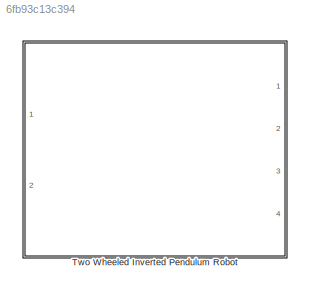
MODEL slx_6fb93c13c394
KIND model
CONFIG AbsTol = auto
CONFIG EnableMultiTasking = off
CONFIG FixedStep = auto
CONFIG MaxStep = auto
CONFIG MinStep = auto
CONFIG RelTol = 1e-3
CONFIG SampleTimeConstraint = Unconstrained
CONFIG Solver = VariableStepAuto
CONFIG SolverName = VariableStepAuto
CONFIG StartTime = 0.0
CONFIG StopTime = 10.0
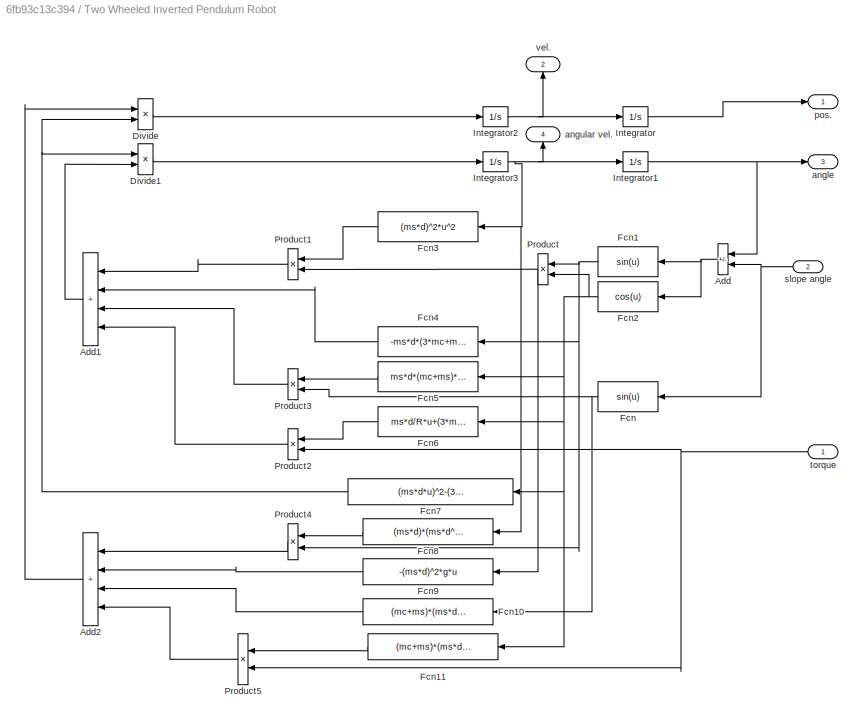
BLOCK [SubSystem] Two Wheeled Inverted Pendulum Robot
  Ports = [2, 4]
  RequestExecContextInheritance = off
BLOCK [Sum] Two Wheeled Inverted Pendulum Robot/Add
  IconShape = rectangular
  Inputs = +-
  Ports = [2, 1]
BLOCK [Sum] Two Wheeled Inverted Pendulum Robot/Add1
  IconShape = rectangular
  Inputs = ++++
  NameLocation = top
  Ports = [4, 1]
BLOCK [Sum] Two Wheeled Inverted Pendulum Robot/Add2
  IconShape = rectangular
  Inputs = ++++
  NameLocation = top
  Ports = [4, 1]
BLOCK [Product] Two Wheeled Inverted Pendulum Robot/Divide
  Inputs = */
  Ports = [2, 1]
BLOCK [Product] Two Wheeled Inverted Pendulum Robot/Divide1
  Inputs = /*
  Ports = [2, 1]
BLOCK [Fcn] Two Wheeled Inverted Pendulum Robot/Fcn
  Expr = sin(u)
  NameLocation = top
BLOCK [Fcn] Two Wheeled Inverted Pendulum Robot/Fcn1
  Expr = sin(u)
  NameLocation = top
BLOCK [Fcn] Two Wheeled Inverted Pendulum Robot/Fcn10
  Expr = (mc+ms)*(ms*d^2+I3)*g*u
  NameLocation = top
BLOCK [Fcn] Two Wheeled Inverted Pendulum Robot/Fcn11
  Expr = (mc+ms)*(ms*d^2+I3)*g*u
  NameLocation = top
BLOCK [Fcn] Two Wheeled Inverted Pendulum Robot/Fcn2
  Expr = cos(u)
  NameLocation = top
BLOCK [Fcn] Two Wheeled Inverted Pendulum Robot/Fcn3
  Expr = (ms*d)^2*u^2
  NameLocation = top
BLOCK [Fcn] Two Wheeled Inverted Pendulum Robot/Fcn4
  Expr = -ms*d*(3*mc+ms)*g*u
  NameLocation = top
BLOCK [Fcn] Two Wheeled Inverted Pendulum Robot/Fcn5
  Expr = ms*d*(mc+ms)*g*u
  NameLocation = top
BLOCK [Fcn] Two Wheeled Inverted Pendulum Robot/Fcn6
  Expr = ms*d/R*u+(3*mc+ms)
  NameLocation = top
BLOCK [Fcn] Two Wheeled Inverted Pendulum Robot/Fcn7
  Expr = (ms*d*u)^2-(3*mc+ms)*(ms*d^2+I3)
  NameLocation = top
BLOCK [Fcn] Two Wheeled Inverted Pendulum Robot/Fcn8
  Expr = (ms*d)*(ms*d^2+I3)*u^2
  NameLocation = top
BLOCK [Fcn] Two Wheeled Inverted Pendulum Robot/Fcn9
  Expr = -(ms*d)^2*g*u
  NameLocation = top
BLOCK [Integrator] Two Wheeled Inverted Pendulum Robot/Integrator
  Ports = [1, 1]
BLOCK [Integrator] Two Wheeled Inverted Pendulum Robot/Integrator1
  Ports = [1, 1]
BLOCK [Integrator] Two Wheeled Inverted Pendulum Robot/Integrator2
  Ports = [1, 1]
BLOCK [Integrator] Two Wheeled Inverted Pendulum Robot/Integrator3
  Ports = [1, 1]
BLOCK [Product] Two Wheeled Inverted Pendulum Robot/Product
  NameLocation = top
  Ports = [2, 1]
BLOCK [Product] Two Wheeled Inverted Pendulum Robot/Product1
  NameLocation = top
  Ports = [2, 1]
BLOCK [Product] Two Wheeled Inverted Pendulum Robot/Product2
  NameLocation = top
  Ports = [2, 1]
BLOCK [Product] Two Wheeled Inverted Pendulum Robot/Product3
  NameLocation = top
  Ports = [2, 1]
BLOCK [Product] Two Wheeled Inverted Pendulum Robot/Product4
  NameLocation = top
  Ports = [2, 1]
BLOCK [Product] Two Wheeled Inverted Pendulum Robot/Product5
  NameLocation = top
  Ports = [2, 1]
BLOCK [Outport] Two Wheeled Inverted Pendulum Robot/angle
  Port = 3
BLOCK [Outport] Two Wheeled Inverted Pendulum Robot/angular vel.
  NameLocation = right
  Port = 4
BLOCK [Outport] Two Wheeled Inverted Pendulum Robot/pos.
BLOCK [Inport] Two Wheeled Inverted Pendulum Robot/slope angle
  Port = 2
BLOCK [Inport] Two Wheeled Inverted Pendulum Robot/torque
BLOCK [Outport] Two Wheeled Inverted Pendulum Robot/vel.
  NameLocation = right
  Port = 2
LINE Two Wheeled Inverted Pendulum Robot/Add1:1 -> Two Wheeled Inverted Pendulum Robot/Divide1:2
LINE Two Wheeled Inverted Pendulum Robot/Add2:1 -> Two Wheeled Inverted Pendulum Robot/Divide:1
NET Two Wheeled Inverted Pendulum Robot/Add:1 -> Two Wheeled Inverted Pendulum Robot/Fcn1:1, Two Wheeled Inverted Pendulum Robot/Fcn2:1
LINE Two Wheeled Inverted Pendulum Robot/Divide1:1 -> Two Wheeled Inverted Pendulum Robot/Integrator3:1
LINE Two Wheeled Inverted Pendulum Robot/Divide:1 -> Two Wheeled Inverted Pendulum Robot/Integrator2:1
LINE Two Wheeled Inverted Pendulum Robot/Fcn10:1 -> Two Wheeled Inverted Pendulum Robot/Add2:3
LINE Two Wheeled Inverted Pendulum Robot/Fcn11:1 -> Two Wheeled Inverted Pendulum Robot/Product5:1
NET Two Wheeled Inverted Pendulum Robot/Fcn1:1 -> Two Wheeled Inverted Pendulum Robot/Fcn4:1, Two Wheeled Inverted Pendulum Robot/Product4:2, Two Wheeled Inverted Pendulum Robot/Product:1
NET Two Wheeled Inverted Pendulum Robot/Fcn2:1 -> Two Wheeled Inverted Pendulum Robot/Fcn11:1, Two Wheeled Inverted Pendulum Robot/Fcn5:1, Two Wheeled Inverted Pendulum Robot/Fcn6:1, Two Wheeled Inverted Pendulum Robot/Fcn7:1, Two Wheeled Inverted Pendulum Robot/Product:2
LINE Two Wheeled Inverted Pendulum Robot/Fcn3:1 -> Two Wheeled Inverted Pendulum Robot/Product1:1
LINE Two Wheeled Inverted Pendulum Robot/Fcn4:1 -> Two Wheeled Inverted Pendulum Robot/Add1:2
LINE Two Wheeled Inverted Pendulum Robot/Fcn5:1 -> Two Wheeled Inverted Pendulum Robot/Product3:1
LINE Two Wheeled Inverted Pendulum Robot/Fcn6:1 -> Two Wheeled Inverted Pendulum Robot/Product2:1
NET Two Wheeled Inverted Pendulum Robot/Fcn7:1 -> Two Wheeled Inverted Pendulum Robot/Divide1:1, Two Wheeled Inverted Pendulum Robot/Divide:2
LINE Two Wheeled Inverted Pendulum Robot/Fcn8:1 -> Two Wheeled Inverted Pendulum Robot/Product4:1
LINE Two Wheeled Inverted Pendulum Robot/Fcn9:1 -> Two Wheeled Inverted Pendulum Robot/Add2:2
NET Two Wheeled Inverted Pendulum Robot/Fcn:1 -> Two Wheeled Inverted Pendulum Robot/Fcn10:1, Two Wheeled Inverted Pendulum Robot/Product3:2
NET Two Wheeled Inverted Pendulum Robot/Integrator1:1 -> Two Wheeled Inverted Pendulum Robot/Add:1, Two Wheeled Inverted Pendulum Robot/angle:1
NET Two Wheeled Inverted Pendulum Robot/Integrator2:1 -> Two Wheeled Inverted Pendulum Robot/Integrator:1, Two Wheeled Inverted Pendulum Robot/vel.:1
NET Two Wheeled Inverted Pendulum Robot/Integrator3:1 -> Two Wheeled Inverted Pendulum Robot/Fcn3:1, Two Wheeled Inverted Pendulum Robot/Fcn8:1, Two Wheeled Inverted Pendulum Robot/Integrator1:1, Two Wheeled Inverted Pendulum Robot/angular vel.:1
LINE Two Wheeled Inverted Pendulum Robot/Integrator:1 -> Two Wheeled Inverted Pendulum Robot/pos.:1
LINE Two Wheeled Inverted Pendulum Robot/Product1:1 -> Two Wheeled Inverted Pendulum Robot/Add1:1
LINE Two Wheeled Inverted Pendulum Robot/Product2:1 -> Two Wheeled Inverted Pendulum Robot/Add1:4
LINE Two Wheeled Inverted Pendulum Robot/Product3:1 -> Two Wheeled Inverted Pendulum Robot/Add1:3
LINE Two Wheeled Inverted Pendulum Robot/Product4:1 -> Two Wheeled Inverted Pendulum Robot/Add2:1
LINE Two Wheeled Inverted Pendulum Robot/Product5:1 -> Two Wheeled Inverted Pendulum Robot/Add2:4
NET Two Wheeled Inverted Pendulum Robot/Product:1 -> Two Wheeled Inverted Pendulum Robot/Fcn9:1, Two Wheeled Inverted Pendulum Robot/Product1:2
NET Two Wheeled Inverted Pendulum Robot/slope angle:1 -> Two Wheeled Inverted Pendulum Robot/Add:2, Two Wheeled Inverted Pendulum Robot/Fcn:1
NET Two Wheeled Inverted Pendulum Robot/torque:1 -> Two Wheeled Inverted Pendulum Robot/Product2:2, Two Wheeled Inverted Pendulum Robot/Product5:2
note: NET lines group one-source signal fan-out (src -> all destinations, sorted); 1:1 wires keep LINE
